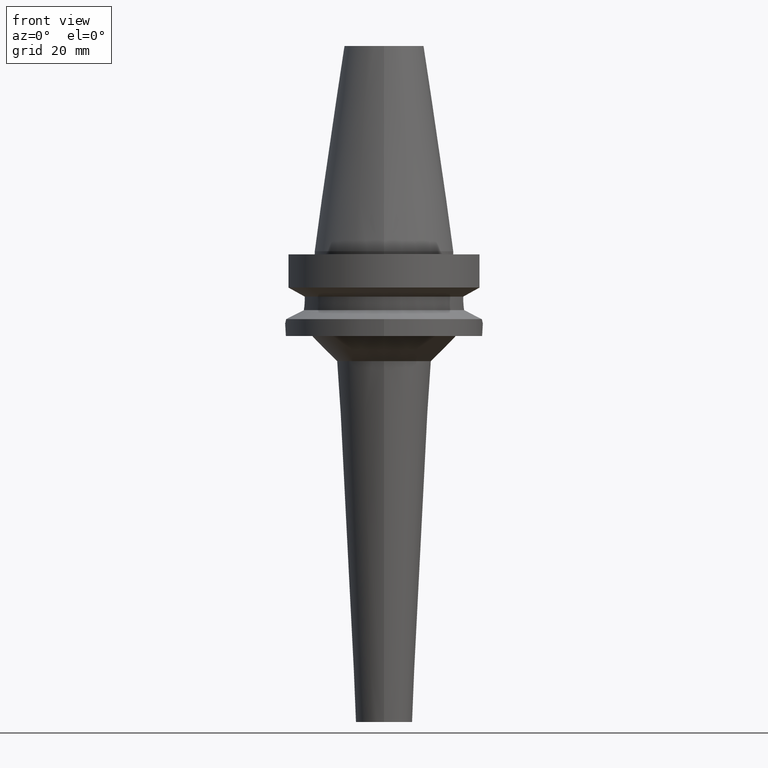
[diagram: clean part render]
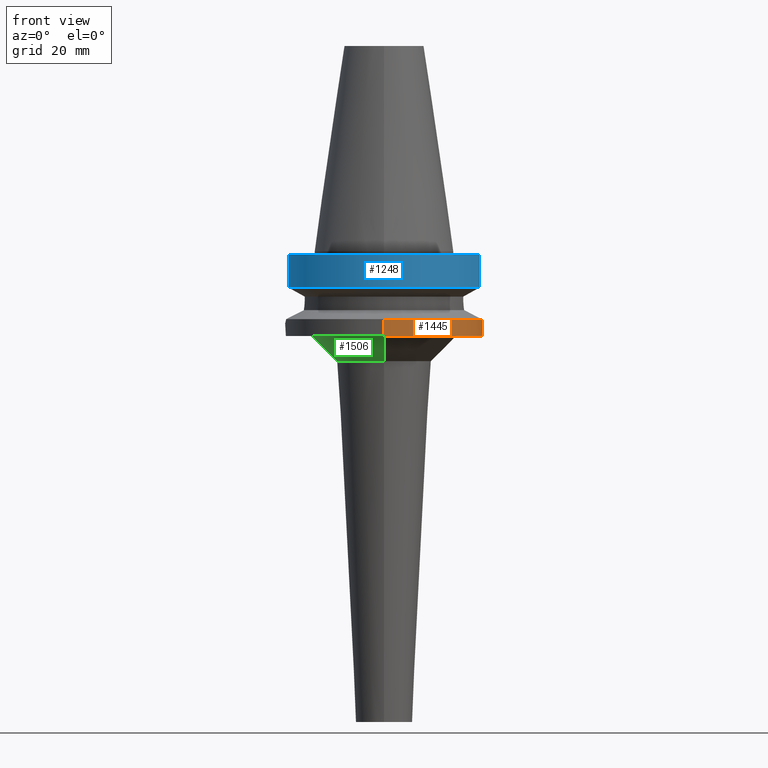
[diagram: same view with three faces highlighted in distinct colors, each labeled with its STEP entity id]
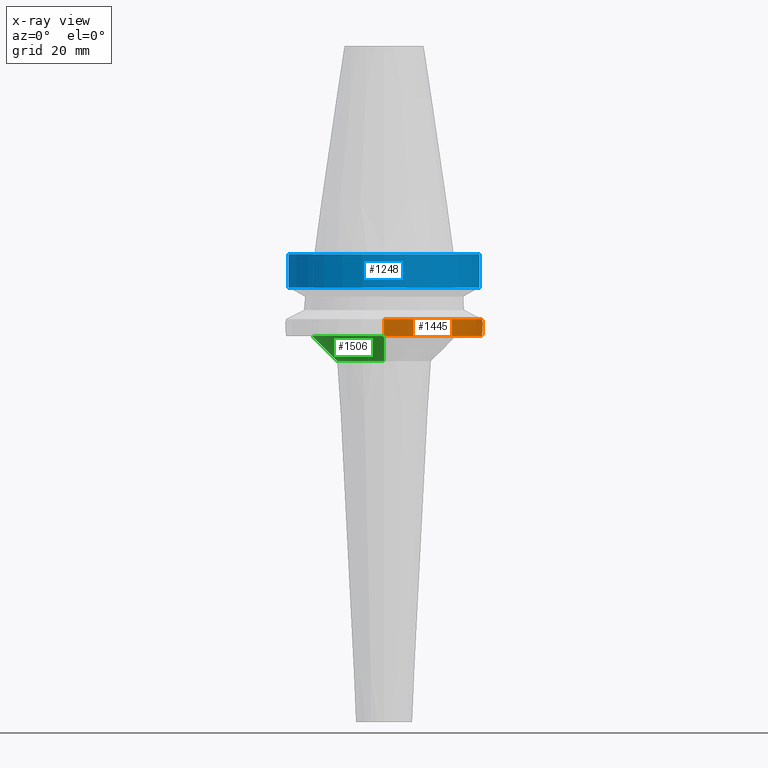
[diagram: x-ray of the same camera — body ghosted, the three highlighted faces saturated]
A machine part, front view with three faces highlighted in distinct colors.
The next image is the same camera in x-ray (body ghosted, the three faces saturated) — at least one of them is partly hidden behind the body in this view.
Their STEP definitions:

[orange] entity #1445 — the highlighted cylindrical surface (partial cylindrical patch) has radius 31.5 mm, axis along (0, 0, -1).
#494=CARTESIAN_POINT('',(0.E0,0.E0,-2.163449434733E1));
#495=DIRECTION('',(0.E0,0.E0,-1.E0));
#496=DIRECTION('',(9.898094849553E-1,-1.423979757319E-1,0.E0));
#497=AXIS2_PLACEMENT_3D('',#494,#495,#496);
#524=CARTESIAN_POINT('',(3.117899877609E1,-4.485536235554E0,-2.163449434733E1));
#525=CARTESIAN_POINT('',(3.124367220158E1,-4.035990730148E0,-2.193615555748E1));
#526=CARTESIAN_POINT('',(3.135871158456E1,-3.100629097605E0,-2.243541244985E1));
#527=CARTESIAN_POINT('',(3.147358573412E1,-1.571562217147E0,-2.289763062564E1));
#528=CARTESIAN_POINT('',(3.15E1,-5.304194873042E-1,-2.3E1));
#529=CARTESIAN_POINT('',(3.15E1,0.E0,-2.3E1));
#534=CARTESIAN_POINT('',(3.15E1,0.E0,-2.3E1));
#535=CARTESIAN_POINT('',(3.15E1,5.305046422127E-1,-2.3E1));
#536=CARTESIAN_POINT('',(3.147357697103E1,1.571759706118E0,-2.289759691925E1));
#537=CARTESIAN_POINT('',(3.135869289629E1,3.100801652067E0,-2.243533471996E1));
#538=CARTESIAN_POINT('',(3.124366261696E1,4.036057352874E0,-2.193611085123E1));
#539=CARTESIAN_POINT('',(3.117899877609E1,4.485536235554E0,-2.163449434733E1));
#544=DIRECTION('',(0.E0,1.099151708819E-13,-1.E0));
#545=VECTOR('',#544,5.365505652669E0);
#546=CARTESIAN_POINT('',(0.E0,3.15E1,-2.163449434733E1));
#547=LINE('',#546,#545);
#569=CARTESIAN_POINT('',(0.E0,0.E0,-2.163449434733E1));
#570=DIRECTION('',(0.E0,0.E0,-1.E0));
#571=DIRECTION('',(0.E0,1.E0,0.E0));
#572=AXIS2_PLACEMENT_3D('',#569,#570,#571);
#615=DIRECTION('',(0.E0,-1.105773104655E-13,-1.E0));
#616=VECTOR('',#615,5.365505652669E0);
#617=CARTESIAN_POINT('',(0.E0,-3.15E1,-2.163449434733E1));
#618=LINE('',#617,#616);
#622=CARTESIAN_POINT('',(0.E0,2.157460266058E-14,-2.7E1));
#623=DIRECTION('',(0.E0,0.E0,1.E0));
#624=DIRECTION('',(0.E0,-1.E0,0.E0));
#625=AXIS2_PLACEMENT_3D('',#622,#623,#624);
#964=CARTESIAN_POINT('',(0.E0,-3.15E1,-2.7E1));
#965=CARTESIAN_POINT('',(0.E0,3.15E1,-2.7E1));
#966=VERTEX_POINT('',#964);
#967=VERTEX_POINT('',#965);
#968=VERTEX_POINT('',#534);
#969=VERTEX_POINT('',#539);
#970=VERTEX_POINT('',#524);
#971=CARTESIAN_POINT('',(0.E0,3.15E1,-2.163449434733E1));
#972=VERTEX_POINT('',#971);
#973=CARTESIAN_POINT('',(0.E0,-3.15E1,-2.163449434733E1));
#974=VERTEX_POINT('',#973);
#1427=CARTESIAN_POINT('',(0.E0,2.157460266058E-14,7.617E1));
#1428=DIRECTION('',(0.E0,0.E0,-1.E0));
#1429=DIRECTION('',(0.E0,-1.E0,0.E0));
#1430=AXIS2_PLACEMENT_3D('',#1427,#1428,#1429);
#1431=CYLINDRICAL_SURFACE('',#1430,3.15E1);
#1432=ORIENTED_EDGE('',*,*,#1413,.T.);
#1433=ORIENTED_EDGE('',*,*,#1411,.T.);
#1435=ORIENTED_EDGE('',*,*,#1434,.F.);
#1437=ORIENTED_EDGE('',*,*,#1436,.T.);
#1439=ORIENTED_EDGE('',*,*,#1438,.F.);
#1441=ORIENTED_EDGE('',*,*,#1440,.F.);
#1442=ORIENTED_EDGE('',*,*,#1399,.F.);
#1443=EDGE_LOOP('',(#1432,#1433,#1435,#1437,#1439,#1441,#1442));
#1444=FACE_OUTER_BOUND('',#1443,.F.);
#498=CIRCLE('',#497,3.15E1);
#530=B_SPLINE_CURVE_WITH_KNOTS('',3,(#524,#525,#526,#527,#528,#529),
.UNSPECIFIED.,.F.,.F.,(4,1,1,4),(0.E0,3.333333333333E-1,6.666666666667E-1,1.E0),
.UNSPECIFIED.);
#540=B_SPLINE_CURVE_WITH_KNOTS('',3,(#534,#535,#536,#537,#538,#539),
.UNSPECIFIED.,.F.,.F.,(4,1,1,4),(0.E0,3.333333333333E-1,6.666666666667E-1,1.E0),
.UNSPECIFIED.);
#573=CIRCLE('',#572,3.15E1);
#626=CIRCLE('',#625,3.15E1);
#1399=EDGE_CURVE('',#970,#974,#498,.T.);
#1411=EDGE_CURVE('',#968,#969,#540,.T.);
#1413=EDGE_CURVE('',#970,#968,#530,.T.);
#1434=EDGE_CURVE('',#972,#969,#573,.T.);
#1436=EDGE_CURVE('',#972,#967,#547,.T.);
#1438=EDGE_CURVE('',#966,#967,#626,.T.);
#1440=EDGE_CURVE('',#974,#966,#618,.T.);
#1445=ADVANCED_FACE('',(#1444),#1431,.T.);

[blue] entity #1248 — the highlighted cylindrical surface (partial cylindrical patch) has radius 31.5 mm, axis along (0, 0, -1).
#138=CARTESIAN_POINT('',(0.E0,2.157460266058E-14,-1.E0));
#139=DIRECTION('',(0.E0,0.E0,-1.E0));
#140=DIRECTION('',(9.667943721520E-1,-2.555555555556E-1,0.E0));
#141=AXIS2_PLACEMENT_3D('',#138,#139,#140);
#146=CARTESIAN_POINT('',(0.E0,2.157460266058E-14,-1.E0));
#147=DIRECTION('',(0.E0,0.E0,-1.E0));
#148=DIRECTION('',(0.E0,-1.E0,0.E0));
#149=AXIS2_PLACEMENT_3D('',#146,#147,#148);
#251=CARTESIAN_POINT('',(0.E0,1.065333950388E-14,-1.156550565267E1));
#252=DIRECTION('',(0.E0,0.E0,1.E0));
#253=DIRECTION('',(-9.667943721520E-1,-2.555555555555E-1,0.E0));
#254=AXIS2_PLACEMENT_3D('',#251,#252,#253);
#259=CARTESIAN_POINT('',(0.E0,1.065333950388E-14,-1.156550565267E1));
#260=DIRECTION('',(0.E0,0.E0,1.E0));
#261=DIRECTION('',(0.E0,-1.E0,0.E0));
#262=AXIS2_PLACEMENT_3D('',#259,#260,#261);
#283=DIRECTION('',(1.805835241064E-8,-6.831694115687E-8,1.E0));
#284=VECTOR('',#283,1.056551215380E1);
#285=CARTESIAN_POINT('',(-3.045402291358E1,-8.049999278196E0,
-1.156551215380E1));
#286=LINE('',#285,#284);
#290=DIRECTION('',(-1.036649194657E-7,-3.921750933745E-7,-9.999999999999E-1));
#291=VECTOR('',#290,1.056546832966E1);
#292=CARTESIAN_POINT('',(3.045402272279E1,-8.05E0,-1.E0));
#293=LINE('',#292,#291);
#1017=CARTESIAN_POINT('',(-3.045402272279E1,-8.05E0,-1.E0));
#1018=VERTEX_POINT('',#1017);
#1019=CARTESIAN_POINT('',(-3.045402291358E1,-8.049999278196E0,
-1.156551215380E1));
#1020=VERTEX_POINT('',#1019);
#1033=CARTESIAN_POINT('',(3.045402272279E1,-8.05E0,-1.E0));
#1034=VERTEX_POINT('',#1033);
#1035=CARTESIAN_POINT('',(3.046064939756E-14,-3.15E1,-1.E0));
#1036=VERTEX_POINT('',#1035);
#1046=CARTESIAN_POINT('',(0.E0,-3.15E1,-1.156550565267E1));
#1047=CARTESIAN_POINT('',(3.045402272279E1,-8.049999999999E0,
-1.156550565267E1));
#1048=VERTEX_POINT('',#1046);
#1049=VERTEX_POINT('',#1047);
#1234=CARTESIAN_POINT('',(0.E0,2.157460266058E-14,7.617E1));
#1235=DIRECTION('',(0.E0,0.E0,-1.E0));
#1236=DIRECTION('',(0.E0,-1.E0,0.E0));
#1237=AXIS2_PLACEMENT_3D('',#1234,#1235,#1236);
#1238=CYLINDRICAL_SURFACE('',#1237,3.15E1);
#1239=ORIENTED_EDGE('',*,*,#1187,.T.);
#1240=ORIENTED_EDGE('',*,*,#1148,.F.);
#1241=ORIENTED_EDGE('',*,*,#1146,.F.);
#1243=ORIENTED_EDGE('',*,*,#1242,.T.);
#1244=ORIENTED_EDGE('',*,*,#1225,.F.);
#1245=ORIENTED_EDGE('',*,*,#1223,.F.);
#1246=EDGE_LOOP('',(#1239,#1240,#1241,#1243,#1244,#1245));
#1247=FACE_OUTER_BOUND('',#1246,.F.);
#142=CIRCLE('',#141,3.15E1);
#150=CIRCLE('',#149,3.15E1);
#255=CIRCLE('',#254,3.15E1);
#263=CIRCLE('',#262,3.15E1);
#1146=EDGE_CURVE('',#1034,#1036,#142,.T.);
#1148=EDGE_CURVE('',#1036,#1018,#150,.T.);
#1187=EDGE_CURVE('',#1020,#1018,#286,.T.);
#1223=EDGE_CURVE('',#1020,#1048,#255,.T.);
#1225=EDGE_CURVE('',#1048,#1049,#263,.T.);
#1242=EDGE_CURVE('',#1034,#1049,#293,.T.);
#1248=ADVANCED_FACE('',(#1247),#1238,.T.);

[green] entity #1506 — the highlighted conical surface has half-angle 45 deg.
#638=CARTESIAN_POINT('',(0.E0,0.E0,-2.7E1));
#639=DIRECTION('',(0.E0,0.E0,-1.E0));
#640=DIRECTION('',(0.E0,-1.E0,0.E0));
#641=AXIS2_PLACEMENT_3D('',#638,#639,#640);
#654=DIRECTION('',(0.E0,7.071067811867E-1,-7.071067811864E-1));
#655=VECTOR('',#654,1.131370849899E1);
#656=CARTESIAN_POINT('',(0.E0,-2.302689461755E1,-2.7E1));
#657=LINE('',#656,#655);
#661=CARTESIAN_POINT('',(0.E0,0.E0,-3.5E1));
#662=DIRECTION('',(0.E0,0.E0,-1.E0));
#663=DIRECTION('',(0.E0,-1.E0,0.E0));
#664=AXIS2_PLACEMENT_3D('',#661,#662,#663);
#669=DIRECTION('',(0.E0,-7.071067811867E-1,-7.071067811864E-1));
#670=VECTOR('',#669,1.131370849899E1);
#671=CARTESIAN_POINT('',(0.E0,2.302689461755E1,-2.7E1));
#672=LINE('',#671,#670);
#956=CARTESIAN_POINT('',(0.E0,1.502689461755E1,-3.5E1));
#957=VERTEX_POINT('',#956);
#958=CARTESIAN_POINT('',(0.E0,-1.502689461755E1,-3.5E1));
#959=VERTEX_POINT('',#958);
#960=CARTESIAN_POINT('',(0.E0,2.302689461755E1,-2.7E1));
#961=VERTEX_POINT('',#960);
#962=CARTESIAN_POINT('',(0.E0,-2.302689461755E1,-2.7E1));
#963=VERTEX_POINT('',#962);
#1492=CARTESIAN_POINT('',(0.E0,0.E0,-3.1E1));
#1493=DIRECTION('',(0.E0,0.E0,1.E0));
#1494=DIRECTION('',(0.E0,1.E0,0.E0));
#1495=AXIS2_PLACEMENT_3D('',#1492,#1493,#1494);
#1496=CONICAL_SURFACE('',#1495,1.902689461755E1,4.5E1);
#1498=ORIENTED_EDGE('',*,*,#1497,.F.);
#1499=ORIENTED_EDGE('',*,*,#1485,.F.);
#1501=ORIENTED_EDGE('',*,*,#1500,.T.);
#1503=ORIENTED_EDGE('',*,*,#1502,.T.);
#1504=EDGE_LOOP('',(#1498,#1499,#1501,#1503));
#1505=FACE_OUTER_BOUND('',#1504,.F.);
#642=CIRCLE('',#641,2.302689461755E1);
#665=CIRCLE('',#664,1.502689461755E1);
#1485=EDGE_CURVE('',#963,#961,#642,.T.);
#1497=EDGE_CURVE('',#961,#957,#672,.T.);
#1500=EDGE_CURVE('',#963,#959,#657,.T.);
#1502=EDGE_CURVE('',#959,#957,#665,.T.);
#1506=ADVANCED_FACE('',(#1505),#1496,.T.);